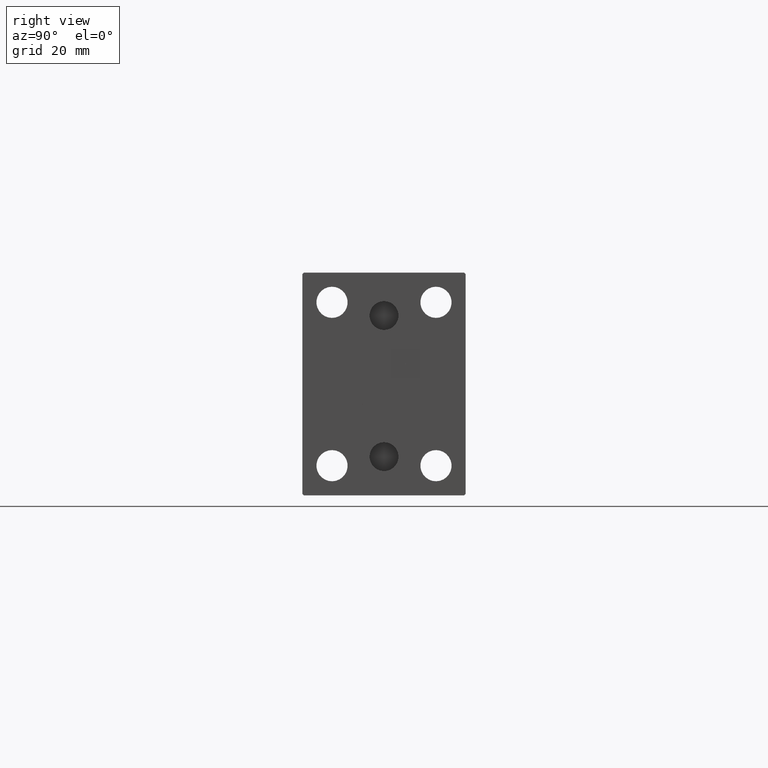
[diagram: clean part render]
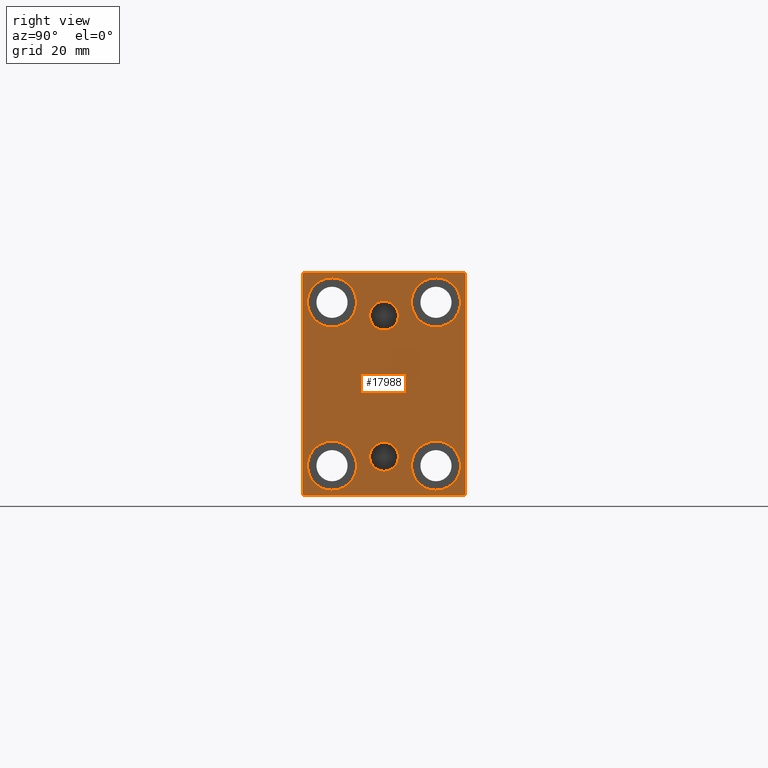
[diagram: same view with one face highlighted and labeled with its STEP entity id]
A machine part, right view. The second image highlights one B-rep face of the part: STEP entity #17988.
In plain terms, the highlighted planar face has unit normal (1, 0, 0).
Its self-contained STEP definition (entity closure, byte-faithful):
#30 = VECTOR ( 'NONE', #5111, 1000.000000000000000 ) ;
#75 = VECTOR ( 'NONE', #10480, 1000.000000000000000 ) ;
#457 = LINE ( 'NONE', #25319, #44924 ) ;
#494 = ORIENTED_EDGE ( 'NONE', *, *, #45527, .T. ) ;
#561 = EDGE_CURVE ( 'NONE', #34322, #46235, #34898, .T. ) ;
#817 = AXIS2_PLACEMENT_3D ( 'NONE', #37418, #29902, #12091 ) ;
#830 = ORIENTED_EDGE ( 'NONE', *, *, #4124, .T. ) ;
#1565 = CIRCLE ( 'NONE', #817, 4.859999999999999432 ) ;
#1697 = CARTESIAN_POINT ( 'NONE',  ( 155.0000000000000000, -32.25000000000000000, -32.25000000000000000 ) ) ;
#1858 = EDGE_LOOP ( 'NONE', ( #38819, #15393 ) ) ;
#1881 = VERTEX_POINT ( 'NONE', #28765 ) ;
#2050 = CARTESIAN_POINT ( 'NONE',  ( 155.0000000000000000, -27.50000000000000355, -37.50000000000000000 ) ) ;
#2091 = PLANE ( 'NONE',  #36349 ) ;
#2243 = CARTESIAN_POINT ( 'NONE',  ( 155.0000000000000000, -3.571693674697836683E-15, 18.14000000000000767 ) ) ;
#3343 = VERTEX_POINT ( 'NONE', #21858 ) ;
#3889 = VERTEX_POINT ( 'NONE', #27555 ) ;
#4124 = EDGE_CURVE ( 'NONE', #36183, #35951, #44294, .T. ) ;
#4293 = DIRECTION ( 'NONE',  ( 1.000000000000000000, 0.000000000000000000, 0.000000000000000000 ) ) ;
#4511 = VECTOR ( 'NONE', #33089, 999.9999999999998863 ) ;
#4588 = DIRECTION ( 'NONE',  ( -1.000000000000000000, -0.000000000000000000, -0.000000000000000000 ) ) ;
#4728 = EDGE_CURVE ( 'NONE', #43330, #38939, #1565, .T. ) ;
#4908 = EDGE_CURVE ( 'NONE', #38454, #7996, #33780, .T. ) ;
#5111 = DIRECTION ( 'NONE',  ( 0.000000000000000000, 1.000000000000000000, 0.000000000000000000 ) ) ;
#5120 = CARTESIAN_POINT ( 'NONE',  ( 155.0000000000000000, -32.25000000000076028, 32.24999999999897682 ) ) ;
#5138 = DIRECTION ( 'NONE',  ( -1.000000000000000000, -0.000000000000000000, -0.000000000000000000 ) ) ;
#5467 = VERTEX_POINT ( 'NONE', #21305 ) ;
#5670 = AXIS2_PLACEMENT_3D ( 'NONE', #28123, #38919, #43120 ) ;
#7210 = CARTESIAN_POINT ( 'NONE',  ( 155.0000000000000000, 17.50000000000000355, 27.49999999999999645 ) ) ;
#7342 = CARTESIAN_POINT ( 'NONE',  ( 155.0000000000000000, 27.50000000000000355, -37.00000000000002842 ) ) ;
#7630 = LINE ( 'NONE', #36732, #25464 ) ;
#7996 = VERTEX_POINT ( 'NONE', #2243 ) ;
#8275 = CARTESIAN_POINT ( 'NONE',  ( 155.0000000000000000, 32.25000000000001421, -32.25000000000001421 ) ) ;
#8316 = CARTESIAN_POINT ( 'NONE',  ( 155.0000000000000000, 3.595563002296627957E-15, -19.63999999999999346 ) ) ;
#8868 = AXIS2_PLACEMENT_3D ( 'NONE', #7210, #38674, #42420 ) ;
#8885 = ORIENTED_EDGE ( 'NONE', *, *, #14938, .T. ) ;
#9637 = AXIS2_PLACEMENT_3D ( 'NONE', #24807, #39571, #39125 ) ;
#9653 = DIRECTION ( 'NONE',  ( 0.000000000000000000, 0.000000000000000000, 1.000000000000000000 ) ) ;
#9901 = CARTESIAN_POINT ( 'NONE',  ( 155.0000000000000000, -17.50000000000000355, -27.50000000000000355 ) ) ;
#10245 = CARTESIAN_POINT ( 'NONE',  ( 155.0000000000000000, 27.50000000000000355, -37.50000000000000000 ) ) ;
#10480 = DIRECTION ( 'NONE',  ( 0.000000000000000000, -9.251858538542970348E-17, 1.000000000000000000 ) ) ;
#10509 = DIRECTION ( 'NONE',  ( 0.000000000000000000, 0.000000000000000000, 1.000000000000000000 ) ) ;
#11076 = ORIENTED_EDGE ( 'NONE', *, *, #45424, .F. ) ;
#11400 = ORIENTED_EDGE ( 'NONE', *, *, #32230, .T. ) ;
#11526 = EDGE_CURVE ( 'NONE', #25155, #3343, #44303, .T. ) ;
#12091 = DIRECTION ( 'NONE',  ( 0.000000000000000000, 0.000000000000000000, 1.000000000000000000 ) ) ;
#12130 = FACE_BOUND ( 'NONE', #28497, .T. ) ;
#12501 = LINE ( 'NONE', #8275, #34521 ) ;
#12695 = AXIS2_PLACEMENT_3D ( 'NONE', #30089, #4293, #16012 ) ;
#12977 = EDGE_CURVE ( 'NONE', #35951, #36183, #33311, .T. ) ;
#13552 = AXIS2_PLACEMENT_3D ( 'NONE', #32435, #28911, #17440 ) ;
#14034 = CARTESIAN_POINT ( 'NONE',  ( 155.0000000000000000, -17.49999999999999645, 27.49999999999999645 ) ) ;
#14313 = AXIS2_PLACEMENT_3D ( 'NONE', #26774, #24191, #19978 ) ;
#14389 = EDGE_CURVE ( 'NONE', #3889, #38481, #39317, .T. ) ;
#14413 = ORIENTED_EDGE ( 'NONE', *, *, #41303, .T. ) ;
#14653 = CIRCLE ( 'NONE', #40866, 8.250000000000000000 ) ;
#14938 = EDGE_CURVE ( 'NONE', #26930, #26424, #25899, .T. ) ;
#15091 = LINE ( 'NONE', #1697, #28411 ) ;
#15267 = VERTEX_POINT ( 'NONE', #37175 ) ;
#15393 = ORIENTED_EDGE ( 'NONE', *, *, #4908, .F. ) ;
#15988 = EDGE_CURVE ( 'NONE', #38481, #3889, #14653, .T. ) ;
#16012 = DIRECTION ( 'NONE',  ( 0.000000000000000000, 0.000000000000000000, -1.000000000000000000 ) ) ;
#16032 = EDGE_LOOP ( 'NONE', ( #33161, #33245, #37686, #42789, #494, #46090, #20924, #14413 ) ) ;
#16106 = FACE_BOUND ( 'NONE', #34932, .T. ) ;
#16408 = DIRECTION ( 'NONE',  ( 0.000000000000000000, 0.000000000000000000, -1.000000000000000000 ) ) ;
#16720 = CARTESIAN_POINT ( 'NONE',  ( 155.0000000000000000, 27.49999999999999645, 37.00000000000004263 ) ) ;
#17231 = AXIS2_PLACEMENT_3D ( 'NONE', #14034, #42640, #10509 ) ;
#17440 = DIRECTION ( 'NONE',  ( 0.000000000000000000, 0.000000000000000000, -1.000000000000000000 ) ) ;
#17988 = ADVANCED_FACE ( 'NONE', ( #39855, #22028, #19631, #36353, #12130, #16106, #30720 ), #2091, .T. ) ;
#18657 = CIRCLE ( 'NONE', #9637, 8.249999999999992895 ) ;
#18752 = CIRCLE ( 'NONE', #17231, 8.249999999999992895 ) ;
#18787 = CARTESIAN_POINT ( 'NONE',  ( 155.0000000000000000, 32.24999999999906208, 32.25000000000130029 ) ) ;
#19087 = DIRECTION ( 'NONE',  ( -0.000000000000000000, 0.7071067811865474617, 0.7071067811865474617 ) ) ;
#19459 = DIRECTION ( 'NONE',  ( 0.000000000000000000, 0.000000000000000000, 1.000000000000000000 ) ) ;
#19506 = ORIENTED_EDGE ( 'NONE', *, *, #12977, .T. ) ;
#19631 = FACE_BOUND ( 'NONE', #31101, .T. ) ;
#19978 = DIRECTION ( 'NONE',  ( 0.000000000000000000, 0.000000000000000000, 1.000000000000000000 ) ) ;
#19993 = DIRECTION ( 'NONE',  ( -1.000000000000000000, -0.000000000000000000, -0.000000000000000000 ) ) ;
#20843 = CARTESIAN_POINT ( 'NONE',  ( 155.0000000000000000, 0.000000000000000000, 0.000000000000000000 ) ) ;
#20924 = ORIENTED_EDGE ( 'NONE', *, *, #561, .T. ) ;
#21002 = EDGE_LOOP ( 'NONE', ( #44312, #11076 ) ) ;
#21305 = CARTESIAN_POINT ( 'NONE',  ( 155.0000000000000000, 26.99999999999999645, 37.50000000000000711 ) ) ;
#21858 = CARTESIAN_POINT ( 'NONE',  ( 155.0000000000000000, -27.50000000000000355, 37.00000000000000000 ) ) ;
#22028 = FACE_BOUND ( 'NONE', #21002, .T. ) ;
#22371 = CIRCLE ( 'NONE', #8868, 8.249999999999992895 ) ;
#24191 = DIRECTION ( 'NONE',  ( -1.000000000000000000, -0.000000000000000000, -0.000000000000000000 ) ) ;
#24322 = AXIS2_PLACEMENT_3D ( 'NONE', #40926, #4588, #33211 ) ;
#24690 = VERTEX_POINT ( 'NONE', #38913 ) ;
#24807 = CARTESIAN_POINT ( 'NONE',  ( 155.0000000000000000, -17.49999999999999645, 27.49999999999999645 ) ) ;
#25155 = VERTEX_POINT ( 'NONE', #27778 ) ;
#25311 = ORIENTED_EDGE ( 'NONE', *, *, #27048, .T. ) ;
#25319 = CARTESIAN_POINT ( 'NONE',  ( 155.0000000000000000, 27.49999999999999645, 37.50000000000000711 ) ) ;
#25464 = VECTOR ( 'NONE', #32732, 1000.000000000000000 ) ;
#25899 = CIRCLE ( 'NONE', #5670, 8.249999999999992895 ) ;
#26424 = VERTEX_POINT ( 'NONE', #33490 ) ;
#26774 = CARTESIAN_POINT ( 'NONE',  ( 155.0000000000000000, 17.49999999999999645, -27.50000000000000355 ) ) ;
#26930 = VERTEX_POINT ( 'NONE', #33321 ) ;
#27048 = EDGE_CURVE ( 'NONE', #26424, #26930, #22371, .T. ) ;
#27401 = ORIENTED_EDGE ( 'NONE', *, *, #43896, .T. ) ;
#27555 = CARTESIAN_POINT ( 'NONE',  ( 155.0000000000000000, -17.50000000000000355, -35.75000000000000711 ) ) ;
#27778 = CARTESIAN_POINT ( 'NONE',  ( 155.0000000000000000, -27.00000000000003197, 37.50000000000000000 ) ) ;
#28123 = CARTESIAN_POINT ( 'NONE',  ( 155.0000000000000000, 17.50000000000000355, 27.49999999999999645 ) ) ;
#28283 = VERTEX_POINT ( 'NONE', #38405 ) ;
#28411 = VECTOR ( 'NONE', #44625, 1000.000000000000114 ) ;
#28497 = EDGE_LOOP ( 'NONE', ( #8885, #25311 ) ) ;
#28647 = CARTESIAN_POINT ( 'NONE',  ( 155.0000000000000000, 17.49999999999999645, -19.25000000000000355 ) ) ;
#28726 = CARTESIAN_POINT ( 'NONE',  ( 155.0000000000000000, 3.000384657911015074E-15, -29.35999999999999233 ) ) ;
#28765 = CARTESIAN_POINT ( 'NONE',  ( 155.0000000000000000, -27.00000000000000355, -37.50000000000000000 ) ) ;
#28911 = DIRECTION ( 'NONE',  ( 1.000000000000000000, 0.000000000000000000, 0.000000000000000000 ) ) ;
#29072 = CARTESIAN_POINT ( 'NONE',  ( 155.0000000000000000, -17.50000000000000355, -19.25000000000000355 ) ) ;
#29081 = LINE ( 'NONE', #18787, #4511 ) ;
#29902 = DIRECTION ( 'NONE',  ( 1.000000000000000000, 0.000000000000000000, -0.000000000000000000 ) ) ;
#30089 = CARTESIAN_POINT ( 'NONE',  ( 155.0000000000000000, -3.571693674697836683E-15, 23.00000000000000711 ) ) ;
#30720 = FACE_OUTER_BOUND ( 'NONE', #16032, .T. ) ;
#30976 = VERTEX_POINT ( 'NONE', #31933 ) ;
#31101 = EDGE_LOOP ( 'NONE', ( #19506, #830 ) ) ;
#31933 = CARTESIAN_POINT ( 'NONE',  ( 155.0000000000000000, -17.49999999999999645, 19.25000000000000000 ) ) ;
#32230 = EDGE_CURVE ( 'NONE', #15267, #30976, #18657, .T. ) ;
#32360 = DIRECTION ( 'NONE',  ( 0.000000000000000000, -1.000000000000000000, -1.261617073437677999E-16 ) ) ;
#32435 = CARTESIAN_POINT ( 'NONE',  ( 155.0000000000000000, -3.571693674697836683E-15, 23.00000000000000711 ) ) ;
#32732 = DIRECTION ( 'NONE',  ( 0.000000000000000000, 0.000000000000000000, -1.000000000000000000 ) ) ;
#33089 = DIRECTION ( 'NONE',  ( -0.000000000000000000, -0.7071067811865721087, 0.7071067811865230368 ) ) ;
#33161 = ORIENTED_EDGE ( 'NONE', *, *, #42754, .T. ) ;
#33211 = DIRECTION ( 'NONE',  ( 0.000000000000000000, 0.000000000000000000, 1.000000000000000000 ) ) ;
#33245 = ORIENTED_EDGE ( 'NONE', *, *, #11526, .T. ) ;
#33311 = CIRCLE ( 'NONE', #24322, 8.250000000000000000 ) ;
#33321 = CARTESIAN_POINT ( 'NONE',  ( 155.0000000000000000, 17.50000000000000355, 19.25000000000000000 ) ) ;
#33490 = CARTESIAN_POINT ( 'NONE',  ( 155.0000000000000000, 17.50000000000000355, 35.74999999999999289 ) ) ;
#33740 = EDGE_CURVE ( 'NONE', #24690, #1881, #15091, .T. ) ;
#33752 = DIRECTION ( 'NONE',  ( 0.000000000000000000, -0.7071067811865279218, -0.7071067811865671127 ) ) ;
#33753 = CIRCLE ( 'NONE', #42733, 4.859999999999999432 ) ;
#33780 = CIRCLE ( 'NONE', #13552, 4.859999999999999432 ) ;
#33786 = EDGE_CURVE ( 'NONE', #7996, #38454, #36684, .T. ) ;
#34303 = DIRECTION ( 'NONE',  ( 1.000000000000000000, 0.000000000000000000, -0.000000000000000000 ) ) ;
#34306 = DIRECTION ( 'NONE',  ( 0.000000000000000000, 0.000000000000000000, 1.000000000000000000 ) ) ;
#34322 = VERTEX_POINT ( 'NONE', #7342 ) ;
#34521 = VECTOR ( 'NONE', #19087, 1000.000000000000114 ) ;
#34898 = LINE ( 'NONE', #10245, #75 ) ;
#34932 = EDGE_LOOP ( 'NONE', ( #45607, #34995 ) ) ;
#34995 = ORIENTED_EDGE ( 'NONE', *, *, #15988, .T. ) ;
#35951 = VERTEX_POINT ( 'NONE', #39328 ) ;
#36128 = CARTESIAN_POINT ( 'NONE',  ( 155.0000000000000000, -2.976515330312223406E-15, 27.86000000000000654 ) ) ;
#36183 = VERTEX_POINT ( 'NONE', #28647 ) ;
#36287 = VECTOR ( 'NONE', #33752, 1000.000000000000000 ) ;
#36349 = AXIS2_PLACEMENT_3D ( 'NONE', #20843, #45485, #16408 ) ;
#36353 = FACE_BOUND ( 'NONE', #38142, .T. ) ;
#36684 = CIRCLE ( 'NONE', #12695, 4.859999999999999432 ) ;
#36732 = CARTESIAN_POINT ( 'NONE',  ( 155.0000000000000000, -27.50000000000000355, 37.50000000000000000 ) ) ;
#37175 = CARTESIAN_POINT ( 'NONE',  ( 155.0000000000000000, -17.49999999999999645, 35.74999999999999289 ) ) ;
#37288 = CARTESIAN_POINT ( 'NONE',  ( 155.0000000000000000, -17.50000000000000355, -27.50000000000000355 ) ) ;
#37418 = CARTESIAN_POINT ( 'NONE',  ( 155.0000000000000000, 3.000384657911015074E-15, -24.49999999999999289 ) ) ;
#37686 = ORIENTED_EDGE ( 'NONE', *, *, #44136, .T. ) ;
#37724 = LINE ( 'NONE', #2050, #30 ) ;
#38142 = EDGE_LOOP ( 'NONE', ( #27401, #11400 ) ) ;
#38405 = CARTESIAN_POINT ( 'NONE',  ( 155.0000000000000000, 27.00000000000003197, -37.50000000000000000 ) ) ;
#38454 = VERTEX_POINT ( 'NONE', #36128 ) ;
#38481 = VERTEX_POINT ( 'NONE', #29072 ) ;
#38592 = AXIS2_PLACEMENT_3D ( 'NONE', #9901, #19993, #34306 ) ;
#38674 = DIRECTION ( 'NONE',  ( -1.000000000000000000, -0.000000000000000000, -0.000000000000000000 ) ) ;
#38819 = ORIENTED_EDGE ( 'NONE', *, *, #33786, .F. ) ;
#38913 = CARTESIAN_POINT ( 'NONE',  ( 155.0000000000000000, -27.50000000000000355, -37.00000000000000000 ) ) ;
#38919 = DIRECTION ( 'NONE',  ( -1.000000000000000000, -0.000000000000000000, -0.000000000000000000 ) ) ;
#38939 = VERTEX_POINT ( 'NONE', #8316 ) ;
#39125 = DIRECTION ( 'NONE',  ( 0.000000000000000000, 0.000000000000000000, 1.000000000000000000 ) ) ;
#39317 = CIRCLE ( 'NONE', #38592, 8.250000000000000000 ) ;
#39328 = CARTESIAN_POINT ( 'NONE',  ( 155.0000000000000000, 17.49999999999999645, -35.75000000000000711 ) ) ;
#39571 = DIRECTION ( 'NONE',  ( -1.000000000000000000, -0.000000000000000000, -0.000000000000000000 ) ) ;
#39855 = FACE_BOUND ( 'NONE', #1858, .T. ) ;
#40866 = AXIS2_PLACEMENT_3D ( 'NONE', #37288, #5138, #19459 ) ;
#40926 = CARTESIAN_POINT ( 'NONE',  ( 155.0000000000000000, 17.49999999999999645, -27.50000000000000355 ) ) ;
#41303 = EDGE_CURVE ( 'NONE', #46235, #5467, #29081, .T. ) ;
#41799 = CARTESIAN_POINT ( 'NONE',  ( 155.0000000000000000, 3.000384657911015074E-15, -24.49999999999999289 ) ) ;
#42420 = DIRECTION ( 'NONE',  ( 0.000000000000000000, 0.000000000000000000, 1.000000000000000000 ) ) ;
#42640 = DIRECTION ( 'NONE',  ( -1.000000000000000000, -0.000000000000000000, -0.000000000000000000 ) ) ;
#42733 = AXIS2_PLACEMENT_3D ( 'NONE', #41799, #34303, #9653 ) ;
#42754 = EDGE_CURVE ( 'NONE', #5467, #25155, #457, .T. ) ;
#42789 = ORIENTED_EDGE ( 'NONE', *, *, #33740, .T. ) ;
#43120 = DIRECTION ( 'NONE',  ( 0.000000000000000000, 0.000000000000000000, 1.000000000000000000 ) ) ;
#43330 = VERTEX_POINT ( 'NONE', #28726 ) ;
#43896 = EDGE_CURVE ( 'NONE', #30976, #15267, #18752, .T. ) ;
#44136 = EDGE_CURVE ( 'NONE', #3343, #24690, #7630, .T. ) ;
#44294 = CIRCLE ( 'NONE', #14313, 8.250000000000000000 ) ;
#44303 = LINE ( 'NONE', #5120, #36287 ) ;
#44312 = ORIENTED_EDGE ( 'NONE', *, *, #4728, .F. ) ;
#44625 = DIRECTION ( 'NONE',  ( -0.000000000000000000, 0.7071067811865474617, -0.7071067811865474617 ) ) ;
#44924 = VECTOR ( 'NONE', #32360, 1000.000000000000000 ) ;
#45276 = EDGE_CURVE ( 'NONE', #28283, #34322, #12501, .T. ) ;
#45424 = EDGE_CURVE ( 'NONE', #38939, #43330, #33753, .T. ) ;
#45485 = DIRECTION ( 'NONE',  ( 1.000000000000000000, 0.000000000000000000, 0.000000000000000000 ) ) ;
#45527 = EDGE_CURVE ( 'NONE', #1881, #28283, #37724, .T. ) ;
#45607 = ORIENTED_EDGE ( 'NONE', *, *, #14389, .T. ) ;
#46090 = ORIENTED_EDGE ( 'NONE', *, *, #45276, .T. ) ;
#46235 = VERTEX_POINT ( 'NONE', #16720 ) ;